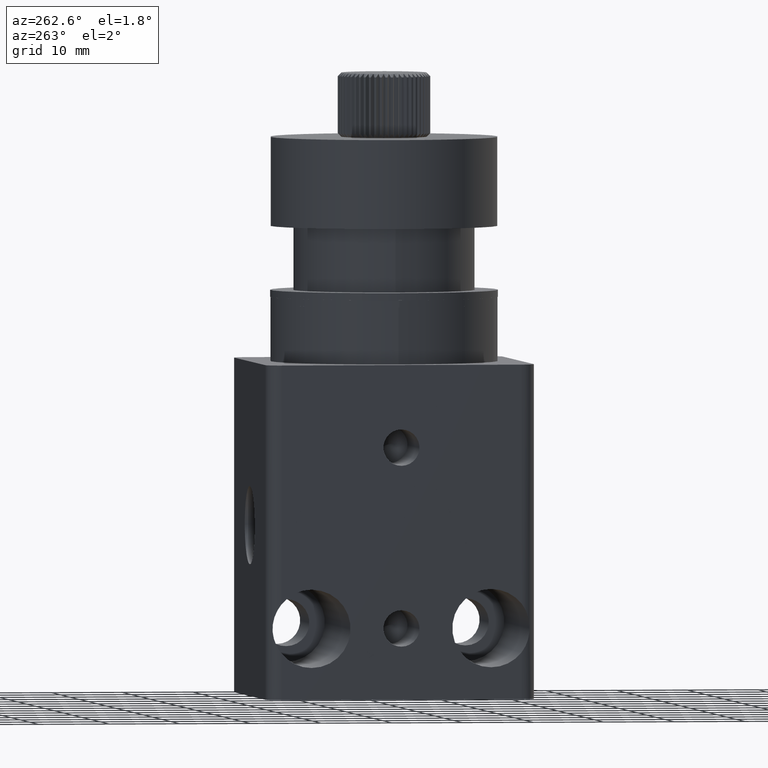
[diagram: clean part render]
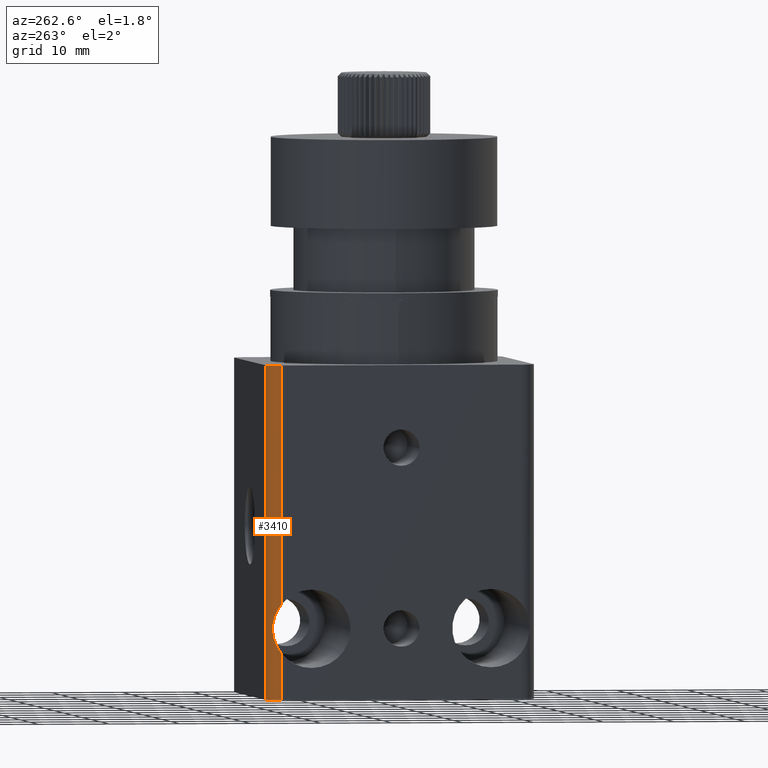
[diagram: same view with one face highlighted and labeled with its STEP entity id]
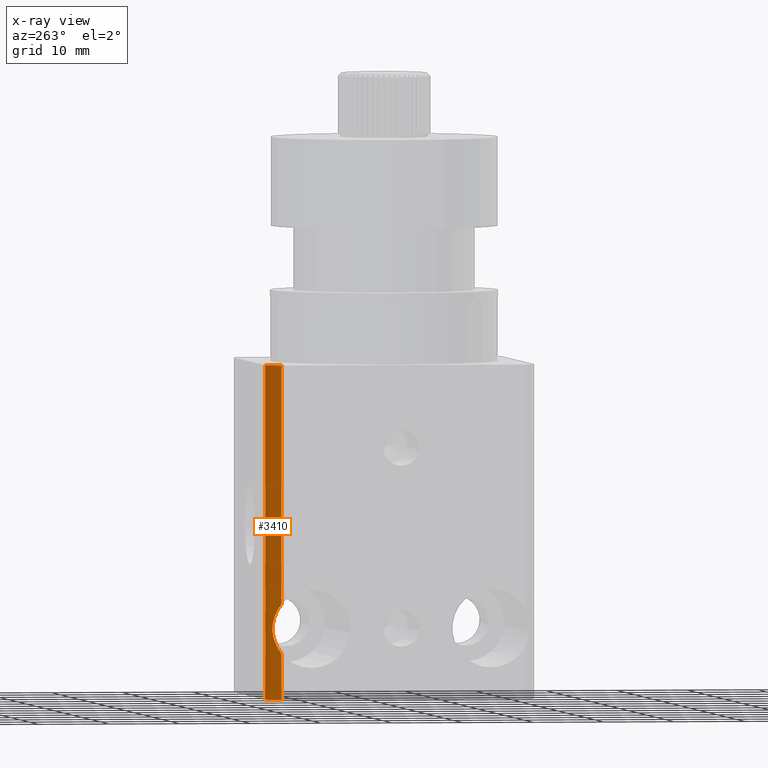
[diagram: x-ray of the same camera — body ghosted, the highlighted face saturated]
A machine part, auxiliary view. The second image highlights one B-rep face of the part: STEP entity #3410.
The next image is the same camera in x-ray: the body ghosted, the highlighted face saturated — about 0% of this face is hidden behind the body in this view.
In plain terms, the highlighted cylindrical surface (edge-blend (fillet) strip) has radius 2 mm, axis along (0, 0, -1).
Its self-contained STEP definition (entity closure, byte-faithful):
#101 = VERTEX_POINT ( 'NONE', #518 ) ;
#118 = CYLINDRICAL_SURFACE ( 'NONE', #7504, 2.000000000000001800 ) ;
#264 = CARTESIAN_POINT ( 'NONE',  ( 33.82532685223227300, 58.65691868999381600, 46.15325513704508600 ) ) ;
#318 = LINE ( 'NONE', #7203, #2427 ) ;
#341 = EDGE_CURVE ( 'NONE', #7749, #7707, #318, .T. ) ;
#441 = DIRECTION ( 'NONE',  ( 0.0000000000000000000, 0.0000000000000000000, -1.000000000000000000 ) ) ;
#518 = CARTESIAN_POINT ( 'NONE',  ( 33.82532685223227300, 58.65691868999381600, 12.58254077694151500 ) ) ;
#646 = B_SPLINE_CURVE_WITH_KNOTS ( 'NONE', 3,
 ( #1921, #1887, #7636, #1169, #6362, #8312, #2498, #3703, #8265, #3117, #4390, #1860, #6999, #2526, #3146, #4366, #7668, #5666 ),
 .UNSPECIFIED., .F., .F.,
 ( 4, 2, 2, 2, 2, 2, 2, 2, 4 ),
 ( 0.0000000000000000000, 0.0009292067687553430400, 0.001858413537510686100, 0.002787620306266029200, 0.003252223690643702200, 0.003716827075021375600, 0.004646033843776726400, 0.005575240612532078400, 0.007433654150042780800 ),
 .UNSPECIFIED. ) ;
#667 = CARTESIAN_POINT ( 'NONE',  ( 33.82532685223227300, 58.65691868999381600, 46.15325513704508600 ) ) ;
#1115 = ORIENTED_EDGE ( 'NONE', *, *, #6407, .F. ) ;
#1169 = CARTESIAN_POINT ( 'NONE',  ( 33.93253140973411800, 59.32097030588470700, 11.54129533720414900 ) ) ;
#1401 = CARTESIAN_POINT ( 'NONE',  ( 35.82532685223226600, 60.65691868999381600, 46.15325513704508600 ) ) ;
#1642 = LINE ( 'NONE', #264, #7077 ) ;
#1792 = CARTESIAN_POINT ( 'NONE',  ( 35.82532685223226600, 58.65691868999381600, 46.15325513704508600 ) ) ;
#1860 = CARTESIAN_POINT ( 'NONE',  ( 34.22525457365519200, 59.85682231852413800, 8.843764429897932500 ) ) ;
#1887 = CARTESIAN_POINT ( 'NONE',  ( 33.82532685223227300, 58.85281967638678700, 12.33689945978510000 ) ) ;
#1921 = CARTESIAN_POINT ( 'NONE',  ( 33.82532685223227300, 58.65691868999381600, 12.58254077694151500 ) ) ;
#2073 = EDGE_CURVE ( 'NONE', #7534, #2104, #1642, .T. ) ;
#2104 = VERTEX_POINT ( 'NONE', #6842 ) ;
#2302 = ORIENTED_EDGE ( 'NONE', *, *, #6016, .F. ) ;
#2342 = EDGE_LOOP ( 'NONE', ( #6514, #7839, #1115, #7551, #2390, #2302 ) ) ;
#2390 = ORIENTED_EDGE ( 'NONE', *, *, #2822, .F. ) ;
#2427 = VECTOR ( 'NONE', #2754, 1000.000000000000000 ) ;
#2432 = DIRECTION ( 'NONE',  ( 0.0000000000000000000, 0.0000000000000000000, -1.000000000000000000 ) ) ;
#2498 = CARTESIAN_POINT ( 'NONE',  ( 34.13434507590968500, 59.72674158286007900, 10.38233858699439700 ) ) ;
#2526 = CARTESIAN_POINT ( 'NONE',  ( 34.13515486876375600, 59.72799193473900200, 7.929871512355057400 ) ) ;
#2716 = AXIS2_PLACEMENT_3D ( 'NONE', #7823, #7890, #3307 ) ;
#2754 = DIRECTION ( 'NONE',  ( -0.0000000000000000000, -0.0000000000000000000, 1.000000000000000000 ) ) ;
#2822 = EDGE_CURVE ( 'NONE', #101, #7534, #646, .T. ) ;
#2993 = DIRECTION ( 'NONE',  ( -1.000000000000000000, 0.0000000000000000000, 0.0000000000000000000 ) ) ;
#3117 = CARTESIAN_POINT ( 'NONE',  ( 34.22050226475624900, 59.85056810424534000, 9.459796891064948800 ) ) ;
#3146 = CARTESIAN_POINT ( 'NONE',  ( 34.08582380261229600, 59.65031641517822400, 7.628922251144018700 ) ) ;
#3307 = DIRECTION ( 'NONE',  ( 1.000000000000000000, 0.0000000000000000000, 0.0000000000000000000 ) ) ;
#3406 = DIRECTION ( 'NONE',  ( 0.0000000000000000000, 0.0000000000000000000, -1.000000000000000000 ) ) ;
#3410 = ADVANCED_FACE ( 'NONE', ( #7481 ), #118, .T. ) ;
#3703 = CARTESIAN_POINT ( 'NONE',  ( 34.18715833615777200, 59.80469436948491300, 9.925039532370339800 ) ) ;
#4366 = CARTESIAN_POINT ( 'NONE',  ( 33.93489426396367000, 59.34764600910546100, 6.762179704863747500 ) ) ;
#4390 = CARTESIAN_POINT ( 'NONE',  ( 34.22536268987296600, 59.85696647353151400, 9.305424398181754600 ) ) ;
#4858 = VECTOR ( 'NONE', #441, 1000.000000000000000 ) ;
#5666 = CARTESIAN_POINT ( 'NONE',  ( 33.82532685223227300, 58.65691868999381600, 5.723969497148655900 ) ) ;
#5697 = CARTESIAN_POINT ( 'NONE',  ( 35.82532685223226600, 60.65691868999381600, -0.8467448629549123600 ) ) ;
#5732 = DIRECTION ( 'NONE',  ( 0.0000000000000000000, -0.0000000000000000000, -1.000000000000000000 ) ) ;
#6016 = EDGE_CURVE ( 'NONE', #6438, #101, #7391, .T. ) ;
#6332 = CIRCLE ( 'NONE', #7357, 2.000000000000001800 ) ;
#6362 = CARTESIAN_POINT ( 'NONE',  ( 33.98477431670186600, 59.44758776617820200, 11.25781893595609000 ) ) ;
#6407 = EDGE_CURVE ( 'NONE', #2104, #7749, #6332, .T. ) ;
#6424 = CARTESIAN_POINT ( 'NONE',  ( 35.82532685223226600, 58.65691868999381600, -0.8467448629549123600 ) ) ;
#6438 = VERTEX_POINT ( 'NONE', #667 ) ;
#6514 = ORIENTED_EDGE ( 'NONE', *, *, #7837, .F. ) ;
#6741 = CARTESIAN_POINT ( 'NONE',  ( 33.82532685223227300, 58.65691868999381600, 46.15325513704508600 ) ) ;
#6842 = CARTESIAN_POINT ( 'NONE',  ( 33.82532685223227300, 58.65691868999381600, -0.8467448629549123600 ) ) ;
#6999 = CARTESIAN_POINT ( 'NONE',  ( 34.20507548850288500, 59.83108424375696200, 8.537944822187526500 ) ) ;
#7005 = DIRECTION ( 'NONE',  ( 1.000000000000000000, 0.0000000000000000000, 0.0000000000000000000 ) ) ;
#7077 = VECTOR ( 'NONE', #3406, 1000.000000000000000 ) ;
#7203 = CARTESIAN_POINT ( 'NONE',  ( 35.82532685223226600, 60.65691868999381600, 46.15325513704508600 ) ) ;
#7248 = CIRCLE ( 'NONE', #2716, 2.000000000000001800 ) ;
#7357 = AXIS2_PLACEMENT_3D ( 'NONE', #6424, #5732, #7005 ) ;
#7391 = LINE ( 'NONE', #6741, #4858 ) ;
#7481 = FACE_OUTER_BOUND ( 'NONE', #2342, .T. ) ;
#7504 = AXIS2_PLACEMENT_3D ( 'NONE', #1792, #2432, #2993 ) ;
#7534 = VERTEX_POINT ( 'NONE', #7576 ) ;
#7551 = ORIENTED_EDGE ( 'NONE', *, *, #2073, .F. ) ;
#7576 = CARTESIAN_POINT ( 'NONE',  ( 33.82532685223227300, 58.65691868999381600, 5.723969497148655900 ) ) ;
#7636 = CARTESIAN_POINT ( 'NONE',  ( 33.85327373559083200, 59.02385961283283000, 12.07972175491982700 ) ) ;
#7668 = CARTESIAN_POINT ( 'NONE',  ( 33.82532685223225100, 59.04786615171303800, 6.214180655366262400 ) ) ;
#7707 = VERTEX_POINT ( 'NONE', #1401 ) ;
#7749 = VERTEX_POINT ( 'NONE', #5697 ) ;
#7823 = CARTESIAN_POINT ( 'NONE',  ( 35.82532685223226600, 58.65691868999381600, 46.15325513704508600 ) ) ;
#7837 = EDGE_CURVE ( 'NONE', #7707, #6438, #7248, .T. ) ;
#7839 = ORIENTED_EDGE ( 'NONE', *, *, #341, .F. ) ;
#7890 = DIRECTION ( 'NONE',  ( -0.0000000000000000000, 0.0000000000000000000, 1.000000000000000000 ) ) ;
#8265 = CARTESIAN_POINT ( 'NONE',  ( 34.20143325323262200, 59.82449329567798200, 9.769517796096504700 ) ) ;
#8312 = CARTESIAN_POINT ( 'NONE',  ( 34.08564653043846700, 59.65004688013095100, 10.67867127360657200 ) ) ;